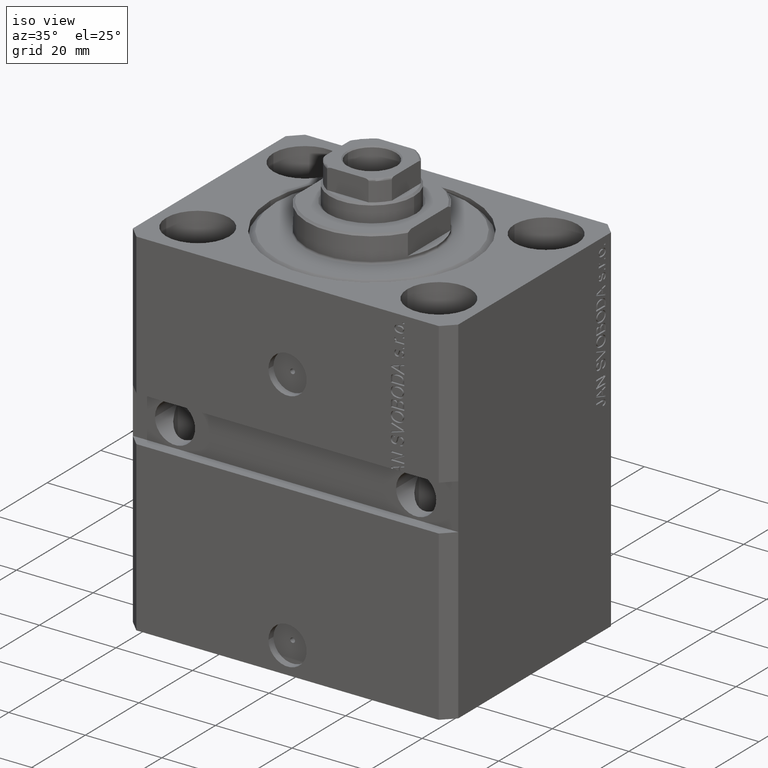
[diagram: clean part render]
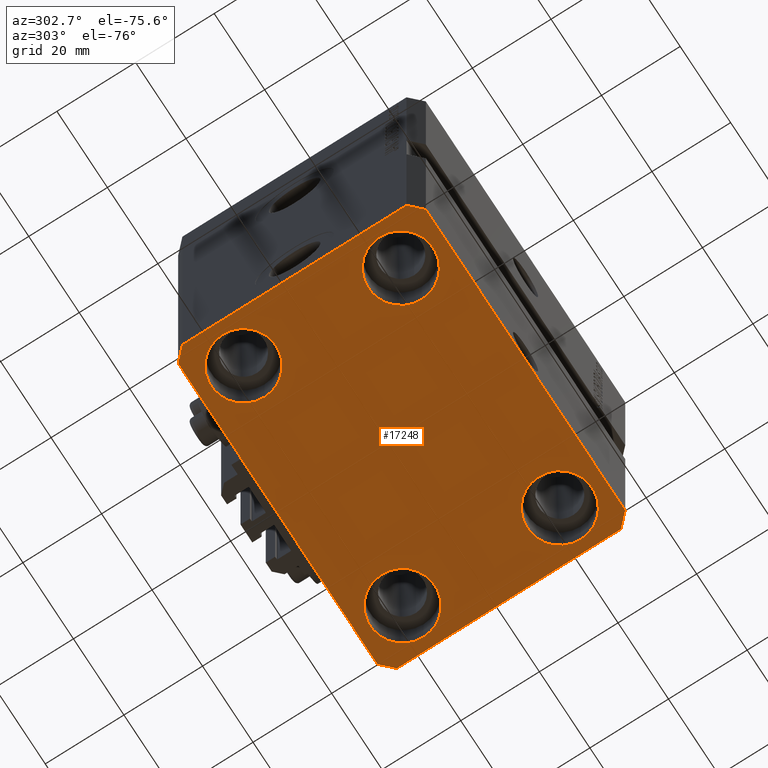
[diagram: tour spotlight — one face highlighted and labeled with its STEP entity id]
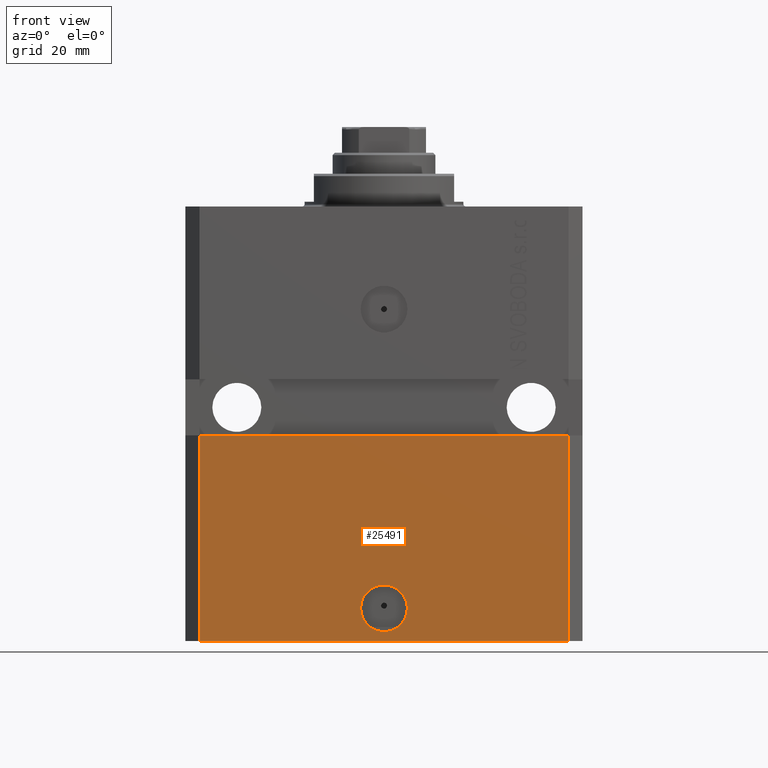
[diagram: tour spotlight — one face highlighted and labeled with its STEP entity id]
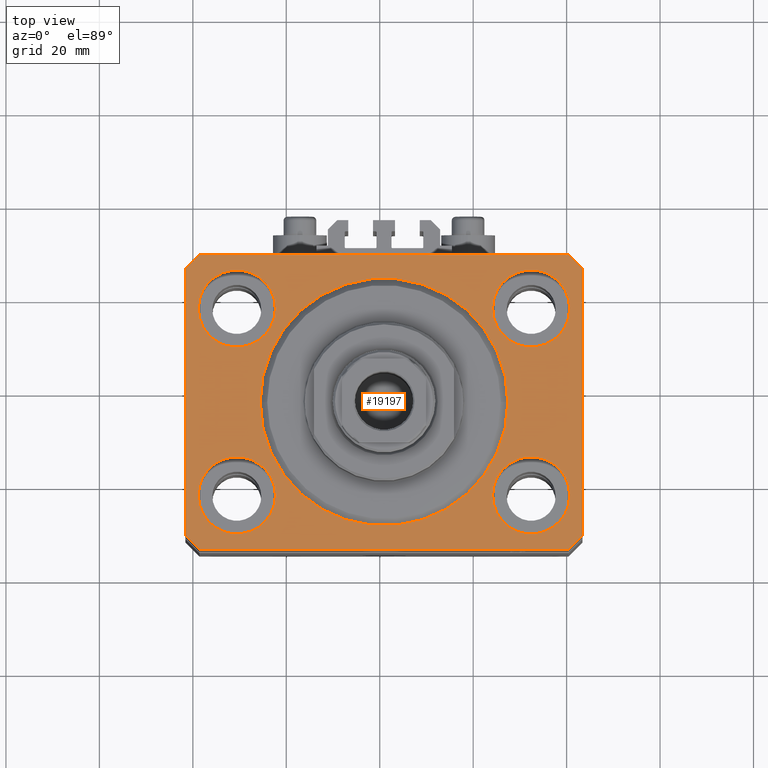
[diagram: tour spotlight — one face highlighted and labeled with its STEP entity id]
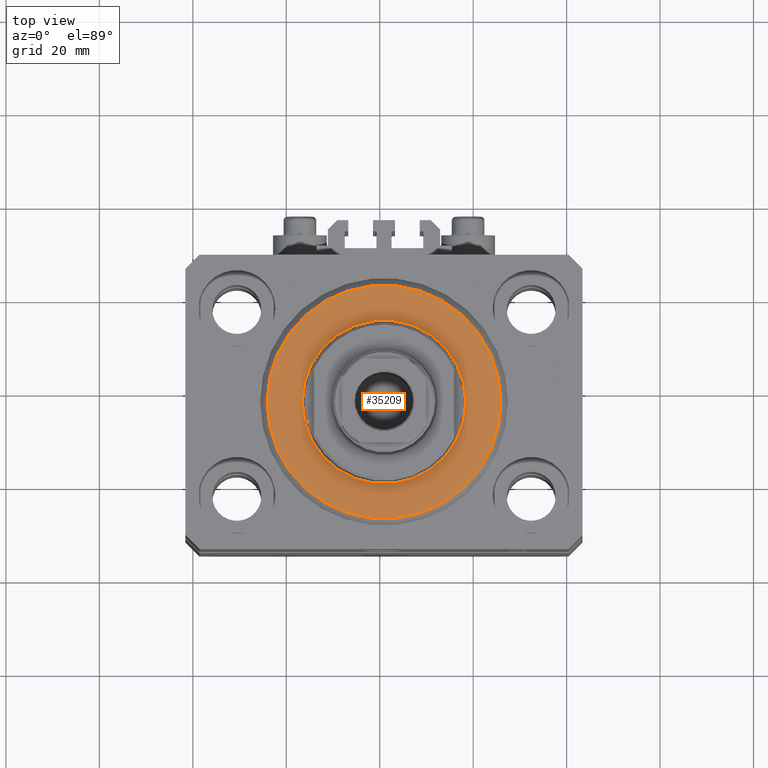
[diagram: tour spotlight — one face highlighted and labeled with its STEP entity id]
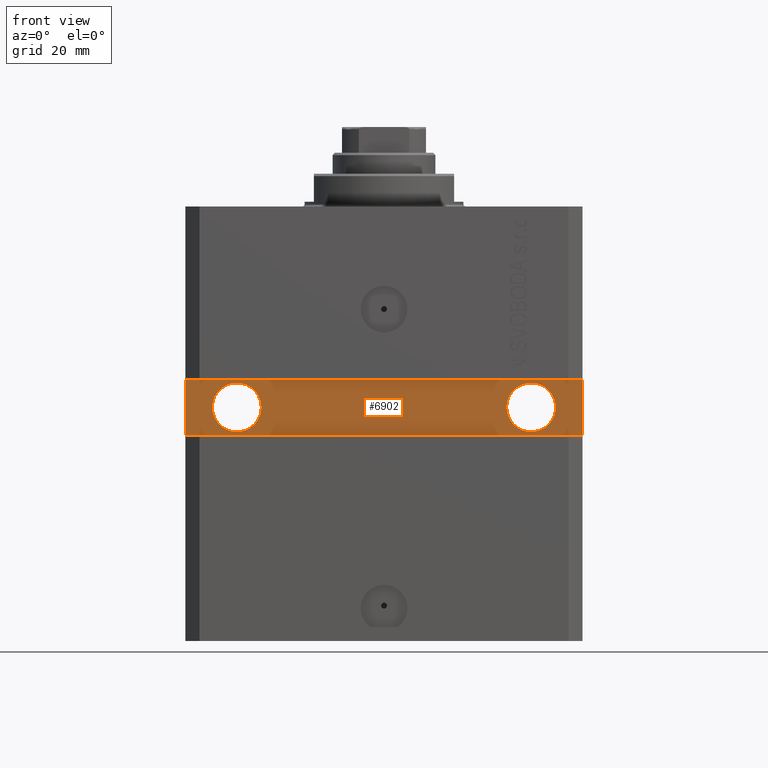
[diagram: tour spotlight — one face highlighted and labeled with its STEP entity id]
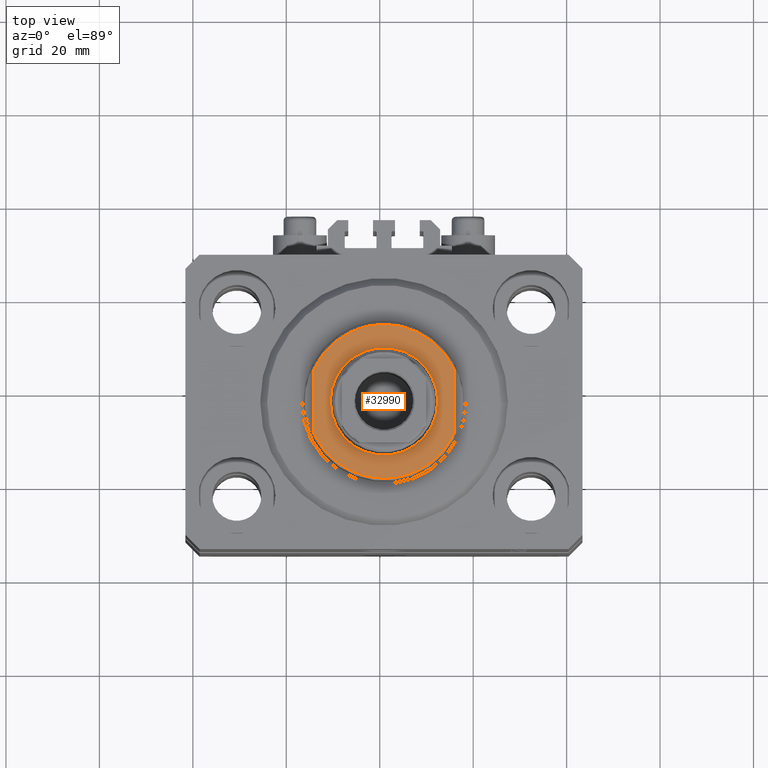
[diagram: tour spotlight — one face highlighted and labeled with its STEP entity id]
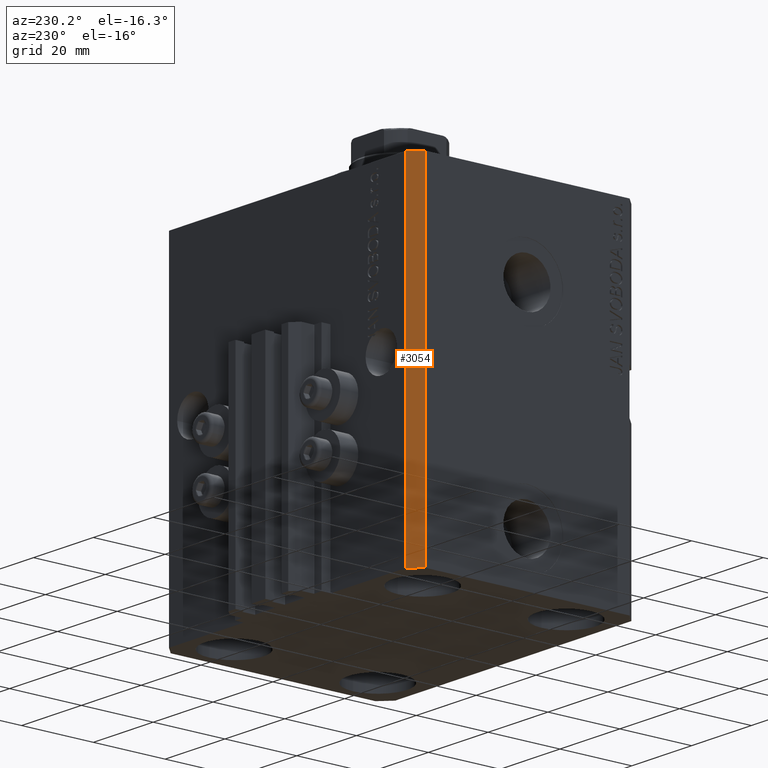
[diagram: tour spotlight — one face highlighted and labeled with its STEP entity id]
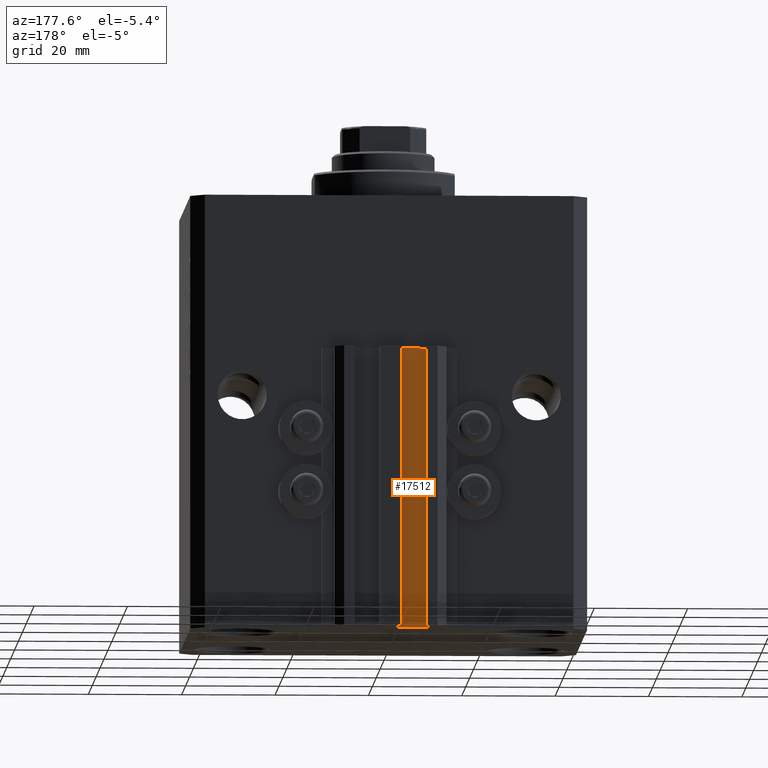
[diagram: tour spotlight — one face highlighted and labeled with its STEP entity id]
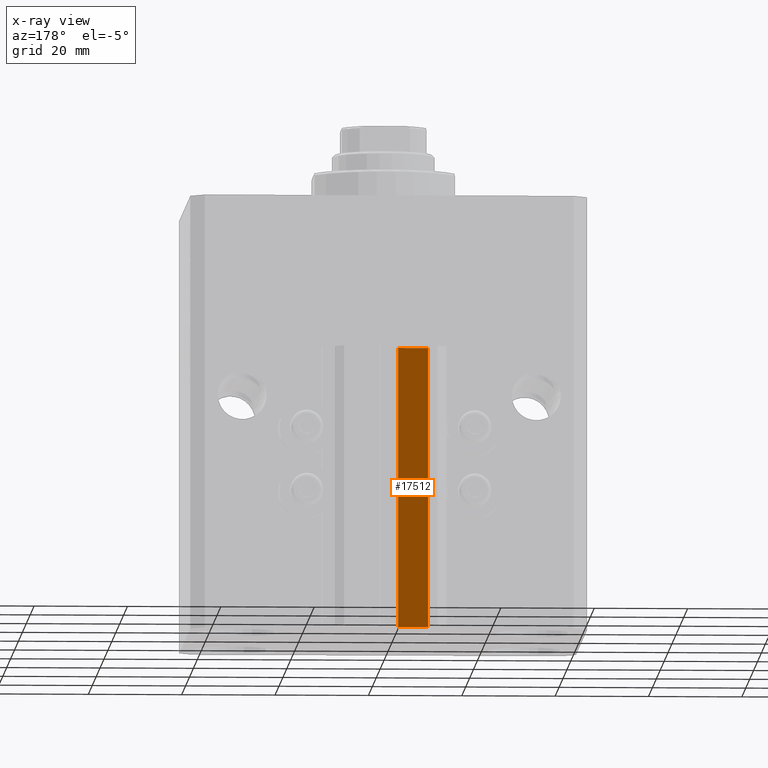
[diagram: x-ray of the same camera — body ghosted, this tour face saturated]
A machine part: a face-by-face anatomy tour. The part has 1087 B-rep faces; the first image is the clean iso view, then the 8 largest visible faces are spotlighted one at a time (largest first), each with its STEP entity span.

Face 1 — auxiliary view, entity #17248. In plain terms, the highlighted planar face has unit normal (0, 0, 1).
Definition (entity closure, byte-faithful):
#257 = ORIENTED_EDGE ( 'NONE', *, *, #44947, .T. ) ;
#808 = CARTESIAN_POINT ( 'NONE',  ( -39.50000000000000711, 31.50000000000000000, -93.00000000000000000 ) ) ;
#1301 = DIRECTION ( 'NONE',  ( 1.000000000000000000, 0.000000000000000000, 0.000000000000000000 ) ) ;
#1502 = ORIENTED_EDGE ( 'NONE', *, *, #9892, .F. ) ;
#1817 = FACE_BOUND ( 'NONE', #39264, .T. ) ;
#1870 = CARTESIAN_POINT ( 'NONE',  ( -31.50000000000000000, -20.00000000000000000, -93.00000000000000000 ) ) ;
#2752 = LINE ( 'NONE', #21498, #31916 ) ;
#2809 = DIRECTION ( 'NONE',  ( -0.000000000000000000, -0.000000000000000000, 1.000000000000000000 ) ) ;
#3139 = CARTESIAN_POINT ( 'NONE',  ( -42.50000000000000000, -28.50000000000000000, -93.00000000000000000 ) ) ;
#3313 = DIRECTION ( 'NONE',  ( -0.000000000000000000, -0.000000000000000000, 1.000000000000000000 ) ) ;
#3993 = VERTEX_POINT ( 'NONE', #21637 ) ;
#3997 = VERTEX_POINT ( 'NONE', #28850 ) ;
#4710 = DIRECTION ( 'NONE',  ( 0.000000000000000000, 0.000000000000000000, 1.000000000000000000 ) ) ;
#4993 = ORIENTED_EDGE ( 'NONE', *, *, #34763, .T. ) ;
#5135 = DIRECTION ( 'NONE',  ( 1.000000000000000000, 0.000000000000000000, 0.000000000000000000 ) ) ;
#5632 = EDGE_LOOP ( 'NONE', ( #257, #9177 ) ) ;
#5649 = CARTESIAN_POINT ( 'NONE',  ( -23.25000000000000000, -20.00000000000000000, -93.00000000000000000 ) ) ;
#5801 = CIRCLE ( 'NONE', #47185, 8.249999999999992895 ) ;
#5835 = CARTESIAN_POINT ( 'NONE',  ( -42.50000000000000000, 28.50000000000000000, -93.00000000000000000 ) ) ;
#6270 = DIRECTION ( 'NONE',  ( 0.7071067811865471286, -0.7071067811865479058, 0.000000000000000000 ) ) ;
#6524 = CIRCLE ( 'NONE', #33431, 8.250000000000000000 ) ;
#6539 = EDGE_CURVE ( 'NONE', #8537, #8378, #40714, .T. ) ;
#6971 = VERTEX_POINT ( 'NONE', #15530 ) ;
#7174 = DIRECTION ( 'NONE',  ( -0.000000000000000000, -0.000000000000000000, 1.000000000000000000 ) ) ;
#7175 = VECTOR ( 'NONE', #25753, 1000.000000000000114 ) ;
#7666 = AXIS2_PLACEMENT_3D ( 'NONE', #32213, #7174, #47600 ) ;
#8011 = CARTESIAN_POINT ( 'NONE',  ( 39.50000000000000711, -31.50000000000000000, -93.00000000000000000 ) ) ;
#8154 = CARTESIAN_POINT ( 'NONE',  ( 39.74999999999999289, 20.00000000000001066, -93.00000000000000000 ) ) ;
#8318 = FACE_BOUND ( 'NONE', #29417, .T. ) ;
#8378 = VERTEX_POINT ( 'NONE', #26670 ) ;
#8537 = VERTEX_POINT ( 'NONE', #39628 ) ;
#8755 = DIRECTION ( 'NONE',  ( -0.000000000000000000, -0.000000000000000000, 1.000000000000000000 ) ) ;
#8804 = FACE_BOUND ( 'NONE', #36847, .T. ) ;
#8947 = VERTEX_POINT ( 'NONE', #808 ) ;
#9177 = ORIENTED_EDGE ( 'NONE', *, *, #41628, .T. ) ;
#9220 = DIRECTION ( 'NONE',  ( -0.000000000000000000, -0.000000000000000000, 1.000000000000000000 ) ) ;
#9572 = LINE ( 'NONE', #38929, #20799 ) ;
#9892 = EDGE_CURVE ( 'NONE', #46229, #40620, #25318, .T. ) ;
#11028 = EDGE_CURVE ( 'NONE', #23531, #46229, #30414, .T. ) ;
#11601 = EDGE_LOOP ( 'NONE', ( #42933, #29257, #36636, #1502, #41055, #44761, #15043, #34645 ) ) ;
#12248 = AXIS2_PLACEMENT_3D ( 'NONE', #37677, #4710, #19873 ) ;
#12929 = DIRECTION ( 'NONE',  ( -0.000000000000000000, -0.000000000000000000, 1.000000000000000000 ) ) ;
#13157 = VERTEX_POINT ( 'NONE', #8154 ) ;
#13771 = DIRECTION ( 'NONE',  ( 0.000000000000000000, -1.000000000000000000, 0.000000000000000000 ) ) ;
#14191 = ORIENTED_EDGE ( 'NONE', *, *, #6539, .T. ) ;
#14563 = CARTESIAN_POINT ( 'NONE',  ( 31.50000000000000000, -20.00000000000000000, -93.00000000000000000 ) ) ;
#14881 = DIRECTION ( 'NONE',  ( -0.000000000000000000, -0.000000000000000000, 1.000000000000000000 ) ) ;
#14897 = EDGE_CURVE ( 'NONE', #13157, #3997, #16022, .T. ) ;
#15043 = ORIENTED_EDGE ( 'NONE', *, *, #17569, .F. ) ;
#15378 = CARTESIAN_POINT ( 'NONE',  ( 42.50000000000051870, 28.49999999999995381, -93.00000000000000000 ) ) ;
#15530 = CARTESIAN_POINT ( 'NONE',  ( 39.50000000000056843, 31.50000000000000000, -93.00000000000000000 ) ) ;
#15602 = VECTOR ( 'NONE', #6270, 1000.000000000000000 ) ;
#15945 = EDGE_CURVE ( 'NONE', #8378, #8537, #35244, .T. ) ;
#16022 = CIRCLE ( 'NONE', #27532, 8.249999999999992895 ) ;
#16047 = EDGE_CURVE ( 'NONE', #3993, #23485, #28359, .T. ) ;
#16554 = DIRECTION ( 'NONE',  ( 1.000000000000000000, 0.000000000000000000, 0.000000000000000000 ) ) ;
#16686 = CARTESIAN_POINT ( 'NONE',  ( 31.50000000000000000, -20.00000000000000000, -93.00000000000000000 ) ) ;
#17226 = AXIS2_PLACEMENT_3D ( 'NONE', #16686, #8755, #5135 ) ;
#17248 = ADVANCED_FACE ( 'NONE', ( #8318, #23017, #1817, #8804, #38158 ), #45141, .F. ) ;
#17569 = EDGE_CURVE ( 'NONE', #43761, #18917, #21001, .T. ) ;
#17662 = DIRECTION ( 'NONE',  ( -0.7071067811865471286, -0.7071067811865479058, 0.000000000000000000 ) ) ;
#18917 = VERTEX_POINT ( 'NONE', #32229 ) ;
#19310 = VERTEX_POINT ( 'NONE', #35479 ) ;
#19786 = VERTEX_POINT ( 'NONE', #15378 ) ;
#19873 = DIRECTION ( 'NONE',  ( 1.000000000000000000, 0.000000000000000000, -0.000000000000000000 ) ) ;
#19900 = EDGE_CURVE ( 'NONE', #40620, #19786, #9572, .T. ) ;
#20440 = EDGE_CURVE ( 'NONE', #3997, #13157, #35387, .T. ) ;
#20724 = CARTESIAN_POINT ( 'NONE',  ( 31.50000000000000000, 20.00000000000001066, -93.00000000000000000 ) ) ;
#20799 = VECTOR ( 'NONE', #22066, 1000.000000000000000 ) ;
#21001 = LINE ( 'NONE', #5835, #24588 ) ;
#21498 = CARTESIAN_POINT ( 'NONE',  ( -39.50000000000000711, 31.50000000000000000, -93.00000000000000000 ) ) ;
#21637 = CARTESIAN_POINT ( 'NONE',  ( -39.75000000000000000, -20.00000000000000000, -93.00000000000000000 ) ) ;
#21792 = ORIENTED_EDGE ( 'NONE', *, *, #15945, .T. ) ;
#21793 = DIRECTION ( 'NONE',  ( 1.000000000000000000, 0.000000000000000000, 0.000000000000000000 ) ) ;
#21919 = VECTOR ( 'NONE', #34170, 1000.000000000000000 ) ;
#22066 = DIRECTION ( 'NONE',  ( 8.886653596232072440E-15, 1.000000000000000000, 0.000000000000000000 ) ) ;
#22139 = LINE ( 'NONE', #43787, #7175 ) ;
#23017 = FACE_BOUND ( 'NONE', #5632, .T. ) ;
#23485 = VERTEX_POINT ( 'NONE', #5649 ) ;
#23531 = VERTEX_POINT ( 'NONE', #46562 ) ;
#24149 = CARTESIAN_POINT ( 'NONE',  ( 31.50000000000000000, 20.00000000000001066, -93.00000000000000000 ) ) ;
#24588 = VECTOR ( 'NONE', #13771, 1000.000000000000000 ) ;
#24654 = CARTESIAN_POINT ( 'NONE',  ( 39.74999999999999289, -20.00000000000000000, -93.00000000000000000 ) ) ;
#25318 = LINE ( 'NONE', #47205, #42493 ) ;
#25753 = DIRECTION ( 'NONE',  ( -0.7071067811865356934, 0.7071067811865594521, 0.000000000000000000 ) ) ;
#25772 = EDGE_CURVE ( 'NONE', #18917, #23531, #32730, .T. ) ;
#26670 = CARTESIAN_POINT ( 'NONE',  ( -39.75000000000000000, 20.00000000000000000, -93.00000000000000000 ) ) ;
#27532 = AXIS2_PLACEMENT_3D ( 'NONE', #20724, #3313, #28819 ) ;
#27554 = EDGE_CURVE ( 'NONE', #19786, #6971, #22139, .T. ) ;
#27666 = LINE ( 'NONE', #45479, #21919 ) ;
#28359 = CIRCLE ( 'NONE', #29864, 8.250000000000000000 ) ;
#28548 = DIRECTION ( 'NONE',  ( 1.000000000000000000, 0.000000000000000000, 0.000000000000000000 ) ) ;
#28819 = DIRECTION ( 'NONE',  ( 1.000000000000000000, 0.000000000000000000, 0.000000000000000000 ) ) ;
#28850 = CARTESIAN_POINT ( 'NONE',  ( 23.25000000000000355, 20.00000000000001066, -93.00000000000000000 ) ) ;
#29246 = DIRECTION ( 'NONE',  ( -0.000000000000000000, -0.000000000000000000, 1.000000000000000000 ) ) ;
#29257 = ORIENTED_EDGE ( 'NONE', *, *, #27554, .F. ) ;
#29417 = EDGE_LOOP ( 'NONE', ( #40737, #4993 ) ) ;
#29511 = CIRCLE ( 'NONE', #17226, 8.249999999999992895 ) ;
#29864 = AXIS2_PLACEMENT_3D ( 'NONE', #1870, #12929, #16554 ) ;
#30414 = LINE ( 'NONE', #30662, #30628 ) ;
#30628 = VECTOR ( 'NONE', #1301, 1000.000000000000000 ) ;
#30662 = CARTESIAN_POINT ( 'NONE',  ( -39.50000000000000711, -31.50000000000000000, -93.00000000000000000 ) ) ;
#31591 = DIRECTION ( 'NONE',  ( 1.000000000000000000, 0.000000000000000000, 0.000000000000000000 ) ) ;
#31916 = VECTOR ( 'NONE', #17662, 1000.000000000000000 ) ;
#32213 = CARTESIAN_POINT ( 'NONE',  ( -31.50000000000000000, 20.00000000000000000, -93.00000000000000000 ) ) ;
#32229 = CARTESIAN_POINT ( 'NONE',  ( -42.50000000000000000, -28.50000000000000000, -93.00000000000000000 ) ) ;
#32730 = LINE ( 'NONE', #3139, #15602 ) ;
#33431 = AXIS2_PLACEMENT_3D ( 'NONE', #47531, #2809, #28548 ) ;
#33880 = DIRECTION ( 'NONE',  ( 1.000000000000000000, 0.000000000000000000, 0.000000000000000000 ) ) ;
#34170 = DIRECTION ( 'NONE',  ( -1.000000000000000000, 0.000000000000000000, 0.000000000000000000 ) ) ;
#34227 = ORIENTED_EDGE ( 'NONE', *, *, #20440, .T. ) ;
#34331 = CARTESIAN_POINT ( 'NONE',  ( -42.50000000000000000, 28.50000000000000000, -93.00000000000000000 ) ) ;
#34645 = ORIENTED_EDGE ( 'NONE', *, *, #35035, .F. ) ;
#34763 = EDGE_CURVE ( 'NONE', #23485, #3993, #6524, .T. ) ;
#34946 = VERTEX_POINT ( 'NONE', #24654 ) ;
#35035 = EDGE_CURVE ( 'NONE', #8947, #43761, #2752, .T. ) ;
#35244 = CIRCLE ( 'NONE', #41403, 8.250000000000000000 ) ;
#35363 = EDGE_CURVE ( 'NONE', #6971, #8947, #27666, .T. ) ;
#35387 = CIRCLE ( 'NONE', #43825, 8.249999999999992895 ) ;
#35479 = CARTESIAN_POINT ( 'NONE',  ( 23.25000000000000355, -20.00000000000000000, -93.00000000000000000 ) ) ;
#36369 = DIRECTION ( 'NONE',  ( 0.7071067811865483499, 0.7071067811865466846, 0.000000000000000000 ) ) ;
#36636 = ORIENTED_EDGE ( 'NONE', *, *, #19900, .F. ) ;
#36847 = EDGE_LOOP ( 'NONE', ( #21792, #14191 ) ) ;
#37677 = CARTESIAN_POINT ( 'NONE',  ( 0.000000000000000000, 0.000000000000000000, -93.00000000000000000 ) ) ;
#38158 = FACE_OUTER_BOUND ( 'NONE', #11601, .T. ) ;
#38929 = CARTESIAN_POINT ( 'NONE',  ( 42.50000000000000711, -28.50000000000000355, -93.00000000000000000 ) ) ;
#39264 = EDGE_LOOP ( 'NONE', ( #34227, #42403 ) ) ;
#39628 = CARTESIAN_POINT ( 'NONE',  ( -23.25000000000000000, 20.00000000000000000, -93.00000000000000000 ) ) ;
#39816 = CARTESIAN_POINT ( 'NONE',  ( 42.50000000000000711, -28.50000000000000355, -93.00000000000000000 ) ) ;
#40620 = VERTEX_POINT ( 'NONE', #39816 ) ;
#40630 = CARTESIAN_POINT ( 'NONE',  ( -31.50000000000000000, 20.00000000000000000, -93.00000000000000000 ) ) ;
#40714 = CIRCLE ( 'NONE', #7666, 8.250000000000000000 ) ;
#40737 = ORIENTED_EDGE ( 'NONE', *, *, #16047, .T. ) ;
#41055 = ORIENTED_EDGE ( 'NONE', *, *, #11028, .F. ) ;
#41403 = AXIS2_PLACEMENT_3D ( 'NONE', #40630, #14881, #33880 ) ;
#41628 = EDGE_CURVE ( 'NONE', #34946, #19310, #29511, .T. ) ;
#42403 = ORIENTED_EDGE ( 'NONE', *, *, #14897, .T. ) ;
#42493 = VECTOR ( 'NONE', #36369, 1000.000000000000000 ) ;
#42933 = ORIENTED_EDGE ( 'NONE', *, *, #35363, .F. ) ;
#43761 = VERTEX_POINT ( 'NONE', #34331 ) ;
#43787 = CARTESIAN_POINT ( 'NONE',  ( 42.50000000000051870, 28.49999999999995381, -93.00000000000000000 ) ) ;
#43825 = AXIS2_PLACEMENT_3D ( 'NONE', #24149, #9220, #31591 ) ;
#44761 = ORIENTED_EDGE ( 'NONE', *, *, #25772, .F. ) ;
#44947 = EDGE_CURVE ( 'NONE', #19310, #34946, #5801, .T. ) ;
#45141 = PLANE ( 'NONE',  #12248 ) ;
#45479 = CARTESIAN_POINT ( 'NONE',  ( 39.50000000000056843, 31.50000000000000000, -93.00000000000000000 ) ) ;
#46229 = VERTEX_POINT ( 'NONE', #8011 ) ;
#46562 = CARTESIAN_POINT ( 'NONE',  ( -39.50000000000000711, -31.50000000000000000, -93.00000000000000000 ) ) ;
#47185 = AXIS2_PLACEMENT_3D ( 'NONE', #14563, #29246, #21793 ) ;
#47205 = CARTESIAN_POINT ( 'NONE',  ( 39.50000000000000711, -31.50000000000000000, -93.00000000000000000 ) ) ;
#47531 = CARTESIAN_POINT ( 'NONE',  ( -31.50000000000000000, -20.00000000000000000, -93.00000000000000000 ) ) ;
#47600 = DIRECTION ( 'NONE',  ( 1.000000000000000000, 0.000000000000000000, 0.000000000000000000 ) ) ;

Face 2 — front view, entity #25491. In plain terms, the highlighted planar face has unit normal (0, -1, 0).
Definition (entity closure, byte-faithful):
#192 = DIRECTION ( 'NONE',  ( 1.176083712526788232E-16, -1.000000000000000000, 0.000000000000000000 ) ) ;
#1180 = CIRCLE ( 'NONE', #2697, 5.000000000000006217 ) ;
#1301 = DIRECTION ( 'NONE',  ( 1.000000000000000000, 0.000000000000000000, 0.000000000000000000 ) ) ;
#2418 = DIRECTION ( 'NONE',  ( 1.000000000000000000, 1.632680918566406300E-16, 0.000000000000000000 ) ) ;
#2697 = AXIS2_PLACEMENT_3D ( 'NONE', #14855, #192, #41077 ) ;
#3334 = AXIS2_PLACEMENT_3D ( 'NONE', #16091, #5483, #20173 ) ;
#4184 = CARTESIAN_POINT ( 'NONE',  ( 39.50000000000001421, -31.49999999999999289, -48.99999999999999289 ) ) ;
#5247 = DIRECTION ( 'NONE',  ( 0.000000000000000000, 0.000000000000000000, 1.000000000000000000 ) ) ;
#5483 = DIRECTION ( 'NONE',  ( 1.176083712526788232E-16, -1.000000000000000000, 0.000000000000000000 ) ) ;
#6253 = LINE ( 'NONE', #27925, #16130 ) ;
#6276 = ORIENTED_EDGE ( 'NONE', *, *, #11028, .T. ) ;
#6322 = AXIS2_PLACEMENT_3D ( 'NONE', #36378, #39298, #28929 ) ;
#7263 = ORIENTED_EDGE ( 'NONE', *, *, #24035, .T. ) ;
#8011 = CARTESIAN_POINT ( 'NONE',  ( 39.50000000000000711, -31.50000000000000000, -93.00000000000000000 ) ) ;
#8321 = VECTOR ( 'NONE', #10866, 1000.000000000000000 ) ;
#8400 = VERTEX_POINT ( 'NONE', #14643 ) ;
#10174 = PLANE ( 'NONE',  #6322 ) ;
#10402 = LINE ( 'NONE', #36863, #8321 ) ;
#10866 = DIRECTION ( 'NONE',  ( 0.000000000000000000, 0.000000000000000000, 1.000000000000000000 ) ) ;
#11028 = EDGE_CURVE ( 'NONE', #23531, #46229, #30414, .T. ) ;
#11354 = EDGE_CURVE ( 'NONE', #23531, #8400, #10402, .T. ) ;
#13662 = CARTESIAN_POINT ( 'NONE',  ( 39.50000000000000711, -31.50000000000000000, -93.00000000000000000 ) ) ;
#14643 = CARTESIAN_POINT ( 'NONE',  ( -39.50000000000000000, -31.50000000000000711, -48.99999999999999289 ) ) ;
#14855 = CARTESIAN_POINT ( 'NONE',  ( 0.000000000000000000, -31.50000000000000000, -86.00000000000000000 ) ) ;
#15009 = EDGE_LOOP ( 'NONE', ( #25643, #15445, #6276, #7263 ) ) ;
#15356 = EDGE_LOOP ( 'NONE', ( #42434, #23155 ) ) ;
#15445 = ORIENTED_EDGE ( 'NONE', *, *, #11354, .F. ) ;
#16091 = CARTESIAN_POINT ( 'NONE',  ( 0.000000000000000000, -31.50000000000000000, -86.00000000000000000 ) ) ;
#16130 = VECTOR ( 'NONE', #2418, 1000.000000000000000 ) ;
#17831 = EDGE_CURVE ( 'NONE', #8400, #33810, #6253, .T. ) ;
#20173 = DIRECTION ( 'NONE',  ( 1.000000000000000000, 0.000000000000000000, 0.000000000000000000 ) ) ;
#20358 = CARTESIAN_POINT ( 'NONE',  ( -5.000000000000006217, -31.50000000000000000, -86.00000000000000000 ) ) ;
#23155 = ORIENTED_EDGE ( 'NONE', *, *, #43614, .F. ) ;
#23531 = VERTEX_POINT ( 'NONE', #46562 ) ;
#24035 = EDGE_CURVE ( 'NONE', #46229, #33810, #38463, .T. ) ;
#24864 = FACE_BOUND ( 'NONE', #15356, .T. ) ;
#25491 = ADVANCED_FACE ( 'NONE', ( #24864, #35679 ), #10174, .T. ) ;
#25643 = ORIENTED_EDGE ( 'NONE', *, *, #17831, .F. ) ;
#27925 = CARTESIAN_POINT ( 'NONE',  ( -42.50000000000000000, -31.50000000000000711, -48.99999999999999289 ) ) ;
#28929 = DIRECTION ( 'NONE',  ( 0.000000000000000000, -0.000000000000000000, -1.000000000000000000 ) ) ;
#29335 = VECTOR ( 'NONE', #5247, 1000.000000000000000 ) ;
#30414 = LINE ( 'NONE', #30662, #30628 ) ;
#30628 = VECTOR ( 'NONE', #1301, 1000.000000000000000 ) ;
#30662 = CARTESIAN_POINT ( 'NONE',  ( -39.50000000000000711, -31.50000000000000000, -93.00000000000000000 ) ) ;
#33810 = VERTEX_POINT ( 'NONE', #4184 ) ;
#35679 = FACE_OUTER_BOUND ( 'NONE', #15009, .T. ) ;
#36378 = CARTESIAN_POINT ( 'NONE',  ( -39.50000000000000711, -31.50000000000000000, -93.00000000000000000 ) ) ;
#36863 = CARTESIAN_POINT ( 'NONE',  ( -39.50000000000000711, -31.50000000000000000, -93.00000000000000000 ) ) ;
#37132 = CIRCLE ( 'NONE', #3334, 5.000000000000006217 ) ;
#38463 = LINE ( 'NONE', #13662, #29335 ) ;
#39076 = EDGE_CURVE ( 'NONE', #46793, #40458, #37132, .T. ) ;
#39298 = DIRECTION ( 'NONE',  ( 0.000000000000000000, -1.000000000000000000, 0.000000000000000000 ) ) ;
#40458 = VERTEX_POINT ( 'NONE', #20358 ) ;
#41077 = DIRECTION ( 'NONE',  ( 1.000000000000000000, 0.000000000000000000, 0.000000000000000000 ) ) ;
#42077 = CARTESIAN_POINT ( 'NONE',  ( 5.000000000000006217, -31.50000000000000000, -86.00000000000000000 ) ) ;
#42434 = ORIENTED_EDGE ( 'NONE', *, *, #39076, .F. ) ;
#43614 = EDGE_CURVE ( 'NONE', #40458, #46793, #1180, .T. ) ;
#46229 = VERTEX_POINT ( 'NONE', #8011 ) ;
#46562 = CARTESIAN_POINT ( 'NONE',  ( -39.50000000000000711, -31.50000000000000000, -93.00000000000000000 ) ) ;
#46793 = VERTEX_POINT ( 'NONE', #42077 ) ;

Face 3 — top view, entity #19197. In plain terms, the highlighted planar face has unit normal (0, 0, 1).
Definition (entity closure, byte-faithful):
#93 = CARTESIAN_POINT ( 'NONE',  ( -42.50000000000000000, 28.50000000000000000, 0.000000000000000000 ) ) ;
#283 = VECTOR ( 'NONE', #37915, 1000.000000000000000 ) ;
#894 = LINE ( 'NONE', #44456, #7310 ) ;
#1006 = ORIENTED_EDGE ( 'NONE', *, *, #24782, .T. ) ;
#1185 = CARTESIAN_POINT ( 'NONE',  ( 23.25000000000000355, -20.00000000000000000, 0.000000000000000000 ) ) ;
#1490 = EDGE_CURVE ( 'NONE', #29046, #25281, #31044, .T. ) ;
#1566 = AXIS2_PLACEMENT_3D ( 'NONE', #6427, #6893, #21118 ) ;
#1798 = CARTESIAN_POINT ( 'NONE',  ( 39.50000000000000711, -31.50000000000000000, 0.000000000000000000 ) ) ;
#1818 = LINE ( 'NONE', #27335, #283 ) ;
#1851 = EDGE_CURVE ( 'NONE', #46170, #30488, #41299, .T. ) ;
#1903 = DIRECTION ( 'NONE',  ( 1.000000000000000000, 0.000000000000000000, 0.000000000000000000 ) ) ;
#1928 = VERTEX_POINT ( 'NONE', #41924 ) ;
#2437 = VERTEX_POINT ( 'NONE', #3041 ) ;
#2920 = DIRECTION ( 'NONE',  ( 0.000000000000000000, 0.000000000000000000, 1.000000000000000000 ) ) ;
#3041 = CARTESIAN_POINT ( 'NONE',  ( -23.25000000000000000, -20.00000000000000000, 0.000000000000000000 ) ) ;
#3289 = FACE_BOUND ( 'NONE', #27363, .T. ) ;
#3767 = EDGE_CURVE ( 'NONE', #22432, #36412, #43579, .T. ) ;
#3842 = DIRECTION ( 'NONE',  ( -0.7071067811865356934, 0.7071067811865594521, 0.000000000000000000 ) ) ;
#4235 = CIRCLE ( 'NONE', #44979, 26.50000000000000355 ) ;
#4722 = DIRECTION ( 'NONE',  ( 1.000000000000000000, 0.000000000000000000, 0.000000000000000000 ) ) ;
#4844 = AXIS2_PLACEMENT_3D ( 'NONE', #11467, #18708, #41067 ) ;
#5622 = AXIS2_PLACEMENT_3D ( 'NONE', #33607, #22792, #37450 ) ;
#5735 = DIRECTION ( 'NONE',  ( 1.000000000000000000, 0.000000000000000000, 0.000000000000000000 ) ) ;
#6033 = EDGE_CURVE ( 'NONE', #2437, #1928, #24547, .T. ) ;
#6427 = CARTESIAN_POINT ( 'NONE',  ( 0.000000000000000000, 0.000000000000000000, 0.000000000000000000 ) ) ;
#6525 = DIRECTION ( 'NONE',  ( 0.000000000000000000, 0.000000000000000000, 1.000000000000000000 ) ) ;
#6893 = DIRECTION ( 'NONE',  ( 0.000000000000000000, 0.000000000000000000, 1.000000000000000000 ) ) ;
#7310 = VECTOR ( 'NONE', #22330, 1000.000000000000000 ) ;
#8666 = CARTESIAN_POINT ( 'NONE',  ( -42.50000000000000000, -28.50000000000000000, 0.000000000000000000 ) ) ;
#8805 = CARTESIAN_POINT ( 'NONE',  ( -23.25000000000000000, 20.00000000000000000, 0.000000000000000000 ) ) ;
#8887 = DIRECTION ( 'NONE',  ( 0.000000000000000000, 0.000000000000000000, 1.000000000000000000 ) ) ;
#8920 = EDGE_CURVE ( 'NONE', #25281, #46058, #23434, .T. ) ;
#9171 = DIRECTION ( 'NONE',  ( 0.000000000000000000, 0.000000000000000000, 1.000000000000000000 ) ) ;
#9418 = DIRECTION ( 'NONE',  ( 1.000000000000000000, 0.000000000000000000, 0.000000000000000000 ) ) ;
#9528 = CARTESIAN_POINT ( 'NONE',  ( 0.000000000000000000, 0.000000000000000000, 0.000000000000000000 ) ) ;
#9659 = CARTESIAN_POINT ( 'NONE',  ( -31.50000000000000000, 20.00000000000000000, 0.000000000000000000 ) ) ;
#9946 = DIRECTION ( 'NONE',  ( 8.886653596232072440E-15, 1.000000000000000000, 0.000000000000000000 ) ) ;
#10722 = VERTEX_POINT ( 'NONE', #1185 ) ;
#10844 = EDGE_LOOP ( 'NONE', ( #45125, #24330 ) ) ;
#11467 = CARTESIAN_POINT ( 'NONE',  ( 31.50000000000000000, 20.00000000000001066, 0.000000000000000000 ) ) ;
#11564 = ORIENTED_EDGE ( 'NONE', *, *, #1490, .T. ) ;
#12839 = LINE ( 'NONE', #32072, #27736 ) ;
#13000 = ORIENTED_EDGE ( 'NONE', *, *, #45432, .F. ) ;
#13384 = DIRECTION ( 'NONE',  ( 0.000000000000000000, 0.000000000000000000, 1.000000000000000000 ) ) ;
#13572 = VERTEX_POINT ( 'NONE', #16983 ) ;
#13882 = FACE_BOUND ( 'NONE', #14990, .T. ) ;
#14587 = FACE_BOUND ( 'NONE', #35446, .T. ) ;
#14859 = CARTESIAN_POINT ( 'NONE',  ( 26.50000000000000355, 0.000000000000000000, 0.000000000000000000 ) ) ;
#14873 = AXIS2_PLACEMENT_3D ( 'NONE', #31187, #34086, #4722 ) ;
#14990 = EDGE_LOOP ( 'NONE', ( #32003, #24857 ) ) ;
#16653 = CARTESIAN_POINT ( 'NONE',  ( -31.50000000000000000, -20.00000000000000000, 0.000000000000000000 ) ) ;
#16983 = CARTESIAN_POINT ( 'NONE',  ( 39.74999999999999289, 20.00000000000001066, 0.000000000000000000 ) ) ;
#17473 = DIRECTION ( 'NONE',  ( 1.000000000000000000, 0.000000000000000000, 0.000000000000000000 ) ) ;
#17742 = AXIS2_PLACEMENT_3D ( 'NONE', #41853, #8887, #5735 ) ;
#17764 = VERTEX_POINT ( 'NONE', #34660 ) ;
#17970 = FACE_BOUND ( 'NONE', #31082, .T. ) ;
#18016 = VERTEX_POINT ( 'NONE', #39694 ) ;
#18249 = AXIS2_PLACEMENT_3D ( 'NONE', #20499, #35163, #34690 ) ;
#18577 = ORIENTED_EDGE ( 'NONE', *, *, #26575, .F. ) ;
#18584 = DIRECTION ( 'NONE',  ( 0.7071067811865483499, 0.7071067811865466846, 0.000000000000000000 ) ) ;
#18708 = DIRECTION ( 'NONE',  ( 0.000000000000000000, 0.000000000000000000, 1.000000000000000000 ) ) ;
#19197 = ADVANCED_FACE ( 'NONE', ( #13882, #28797, #3289, #14587, #17970, #24727 ), #39390, .T. ) ;
#19677 = ORIENTED_EDGE ( 'NONE', *, *, #23918, .T. ) ;
#19812 = DIRECTION ( 'NONE',  ( 1.000000000000000000, 0.000000000000000000, 0.000000000000000000 ) ) ;
#20499 = CARTESIAN_POINT ( 'NONE',  ( -31.50000000000000000, 20.00000000000000000, 0.000000000000000000 ) ) ;
#21118 = DIRECTION ( 'NONE',  ( 1.000000000000000000, 0.000000000000000000, -0.000000000000000000 ) ) ;
#21265 = EDGE_CURVE ( 'NONE', #18016, #44693, #12839, .T. ) ;
#21419 = EDGE_CURVE ( 'NONE', #1928, #2437, #21579, .T. ) ;
#21579 = CIRCLE ( 'NONE', #17742, 8.250000000000000000 ) ;
#21643 = LINE ( 'NONE', #36789, #41644 ) ;
#21693 = CARTESIAN_POINT ( 'NONE',  ( 39.50000000000056843, 31.50000000000000000, 0.000000000000000000 ) ) ;
#22330 = DIRECTION ( 'NONE',  ( 0.000000000000000000, -1.000000000000000000, 0.000000000000000000 ) ) ;
#22432 = VERTEX_POINT ( 'NONE', #33459 ) ;
#22619 = CIRCLE ( 'NONE', #28747, 8.250000000000000000 ) ;
#22792 = DIRECTION ( 'NONE',  ( 0.000000000000000000, 0.000000000000000000, 1.000000000000000000 ) ) ;
#23214 = CARTESIAN_POINT ( 'NONE',  ( -39.50000000000000711, -31.50000000000000000, 0.000000000000000000 ) ) ;
#23434 = LINE ( 'NONE', #38099, #34629 ) ;
#23705 = EDGE_LOOP ( 'NONE', ( #31782, #24391, #33209, #11564, #33223, #1006, #42924, #19677 ) ) ;
#23802 = VERTEX_POINT ( 'NONE', #46680 ) ;
#23840 = CARTESIAN_POINT ( 'NONE',  ( -39.50000000000000711, 31.50000000000000000, 0.000000000000000000 ) ) ;
#23865 = DIRECTION ( 'NONE',  ( 1.000000000000000000, 0.000000000000000000, 0.000000000000000000 ) ) ;
#23918 = EDGE_CURVE ( 'NONE', #44693, #22432, #21643, .T. ) ;
#23948 = CARTESIAN_POINT ( 'NONE',  ( -26.50000000000000355, 3.245314017740486554E-15, 0.000000000000000000 ) ) ;
#24026 = VECTOR ( 'NONE', #18584, 1000.000000000000000 ) ;
#24330 = ORIENTED_EDGE ( 'NONE', *, *, #25769, .F. ) ;
#24391 = ORIENTED_EDGE ( 'NONE', *, *, #30435, .T. ) ;
#24547 = CIRCLE ( 'NONE', #34527, 8.250000000000000000 ) ;
#24727 = FACE_OUTER_BOUND ( 'NONE', #23705, .T. ) ;
#24782 = EDGE_CURVE ( 'NONE', #46058, #18016, #25559, .T. ) ;
#24857 = ORIENTED_EDGE ( 'NONE', *, *, #21419, .F. ) ;
#24879 = CIRCLE ( 'NONE', #14873, 26.50000000000000355 ) ;
#25281 = VERTEX_POINT ( 'NONE', #23214 ) ;
#25559 = LINE ( 'NONE', #33494, #24026 ) ;
#25769 = EDGE_CURVE ( 'NONE', #10722, #17764, #35556, .T. ) ;
#26575 = EDGE_CURVE ( 'NONE', #23802, #13572, #28679, .T. ) ;
#27335 = CARTESIAN_POINT ( 'NONE',  ( -39.50000000000000711, 31.50000000000000000, 0.000000000000000000 ) ) ;
#27363 = EDGE_LOOP ( 'NONE', ( #29956, #18577 ) ) ;
#27736 = VECTOR ( 'NONE', #9946, 1000.000000000000000 ) ;
#28071 = CARTESIAN_POINT ( 'NONE',  ( -42.50000000000000000, -28.50000000000000000, 0.000000000000000000 ) ) ;
#28679 = CIRCLE ( 'NONE', #4844, 8.249999999999992895 ) ;
#28683 = EDGE_CURVE ( 'NONE', #13572, #23802, #41706, .T. ) ;
#28747 = AXIS2_PLACEMENT_3D ( 'NONE', #9659, #2920, #9418 ) ;
#28784 = VERTEX_POINT ( 'NONE', #14859 ) ;
#28797 = FACE_BOUND ( 'NONE', #10844, .T. ) ;
#29046 = VERTEX_POINT ( 'NONE', #28071 ) ;
#29781 = CARTESIAN_POINT ( 'NONE',  ( 42.50000000000051870, 28.49999999999995381, 0.000000000000000000 ) ) ;
#29956 = ORIENTED_EDGE ( 'NONE', *, *, #28683, .F. ) ;
#30435 = EDGE_CURVE ( 'NONE', #36412, #32738, #1818, .T. ) ;
#30488 = VERTEX_POINT ( 'NONE', #8805 ) ;
#31044 = LINE ( 'NONE', #8666, #32954 ) ;
#31082 = EDGE_LOOP ( 'NONE', ( #44660, #32210 ) ) ;
#31187 = CARTESIAN_POINT ( 'NONE',  ( 0.000000000000000000, 0.000000000000000000, 0.000000000000000000 ) ) ;
#31204 = EDGE_CURVE ( 'NONE', #17764, #10722, #36358, .T. ) ;
#31782 = ORIENTED_EDGE ( 'NONE', *, *, #3767, .T. ) ;
#32003 = ORIENTED_EDGE ( 'NONE', *, *, #6033, .F. ) ;
#32072 = CARTESIAN_POINT ( 'NONE',  ( 42.50000000000000711, -28.50000000000000355, 0.000000000000000000 ) ) ;
#32210 = ORIENTED_EDGE ( 'NONE', *, *, #43847, .F. ) ;
#32619 = VERTEX_POINT ( 'NONE', #23948 ) ;
#32738 = VERTEX_POINT ( 'NONE', #93 ) ;
#32954 = VECTOR ( 'NONE', #45244, 1000.000000000000000 ) ;
#33209 = ORIENTED_EDGE ( 'NONE', *, *, #43672, .T. ) ;
#33223 = ORIENTED_EDGE ( 'NONE', *, *, #8920, .T. ) ;
#33459 = CARTESIAN_POINT ( 'NONE',  ( 39.50000000000056843, 31.50000000000000000, 0.000000000000000000 ) ) ;
#33494 = CARTESIAN_POINT ( 'NONE',  ( 39.50000000000000711, -31.50000000000000000, 0.000000000000000000 ) ) ;
#33607 = CARTESIAN_POINT ( 'NONE',  ( 31.50000000000000000, -20.00000000000000000, 0.000000000000000000 ) ) ;
#33671 = VECTOR ( 'NONE', #36356, 1000.000000000000000 ) ;
#34086 = DIRECTION ( 'NONE',  ( 0.000000000000000000, 0.000000000000000000, 1.000000000000000000 ) ) ;
#34527 = AXIS2_PLACEMENT_3D ( 'NONE', #16653, #6525, #42627 ) ;
#34629 = VECTOR ( 'NONE', #19812, 1000.000000000000000 ) ;
#34660 = CARTESIAN_POINT ( 'NONE',  ( 39.74999999999999289, -20.00000000000000000, 0.000000000000000000 ) ) ;
#34690 = DIRECTION ( 'NONE',  ( 1.000000000000000000, 0.000000000000000000, 0.000000000000000000 ) ) ;
#35163 = DIRECTION ( 'NONE',  ( 0.000000000000000000, 0.000000000000000000, 1.000000000000000000 ) ) ;
#35446 = EDGE_LOOP ( 'NONE', ( #13000, #38598 ) ) ;
#35556 = CIRCLE ( 'NONE', #37098, 8.249999999999992895 ) ;
#35813 = CARTESIAN_POINT ( 'NONE',  ( 31.50000000000000000, 20.00000000000001066, 0.000000000000000000 ) ) ;
#36356 = DIRECTION ( 'NONE',  ( -1.000000000000000000, 0.000000000000000000, 0.000000000000000000 ) ) ;
#36358 = CIRCLE ( 'NONE', #5622, 8.249999999999992895 ) ;
#36412 = VERTEX_POINT ( 'NONE', #23840 ) ;
#36789 = CARTESIAN_POINT ( 'NONE',  ( 42.50000000000051870, 28.49999999999995381, 0.000000000000000000 ) ) ;
#37098 = AXIS2_PLACEMENT_3D ( 'NONE', #42140, #9171, #23865 ) ;
#37450 = DIRECTION ( 'NONE',  ( 1.000000000000000000, 0.000000000000000000, 0.000000000000000000 ) ) ;
#37915 = DIRECTION ( 'NONE',  ( -0.7071067811865471286, -0.7071067811865479058, 0.000000000000000000 ) ) ;
#38099 = CARTESIAN_POINT ( 'NONE',  ( -39.50000000000000711, -31.50000000000000000, 0.000000000000000000 ) ) ;
#38598 = ORIENTED_EDGE ( 'NONE', *, *, #1851, .F. ) ;
#39390 = PLANE ( 'NONE',  #1566 ) ;
#39694 = CARTESIAN_POINT ( 'NONE',  ( 42.50000000000000711, -28.50000000000000355, 0.000000000000000000 ) ) ;
#40425 = EDGE_CURVE ( 'NONE', #28784, #32619, #24879, .T. ) ;
#41067 = DIRECTION ( 'NONE',  ( 1.000000000000000000, 0.000000000000000000, 0.000000000000000000 ) ) ;
#41299 = CIRCLE ( 'NONE', #18249, 8.250000000000000000 ) ;
#41644 = VECTOR ( 'NONE', #3842, 1000.000000000000114 ) ;
#41706 = CIRCLE ( 'NONE', #43245, 8.249999999999992895 ) ;
#41853 = CARTESIAN_POINT ( 'NONE',  ( -31.50000000000000000, -20.00000000000000000, 0.000000000000000000 ) ) ;
#41924 = CARTESIAN_POINT ( 'NONE',  ( -39.75000000000000000, -20.00000000000000000, 0.000000000000000000 ) ) ;
#42140 = CARTESIAN_POINT ( 'NONE',  ( 31.50000000000000000, -20.00000000000000000, 0.000000000000000000 ) ) ;
#42627 = DIRECTION ( 'NONE',  ( 1.000000000000000000, 0.000000000000000000, 0.000000000000000000 ) ) ;
#42924 = ORIENTED_EDGE ( 'NONE', *, *, #21265, .T. ) ;
#43245 = AXIS2_PLACEMENT_3D ( 'NONE', #35813, #46650, #1903 ) ;
#43579 = LINE ( 'NONE', #21693, #33671 ) ;
#43672 = EDGE_CURVE ( 'NONE', #32738, #29046, #894, .T. ) ;
#43847 = EDGE_CURVE ( 'NONE', #32619, #28784, #4235, .T. ) ;
#44356 = CARTESIAN_POINT ( 'NONE',  ( -39.75000000000000000, 20.00000000000000000, 0.000000000000000000 ) ) ;
#44456 = CARTESIAN_POINT ( 'NONE',  ( -42.50000000000000000, 28.50000000000000000, 0.000000000000000000 ) ) ;
#44660 = ORIENTED_EDGE ( 'NONE', *, *, #40425, .F. ) ;
#44693 = VERTEX_POINT ( 'NONE', #29781 ) ;
#44979 = AXIS2_PLACEMENT_3D ( 'NONE', #9528, #13384, #17473 ) ;
#45125 = ORIENTED_EDGE ( 'NONE', *, *, #31204, .F. ) ;
#45244 = DIRECTION ( 'NONE',  ( 0.7071067811865471286, -0.7071067811865479058, 0.000000000000000000 ) ) ;
#45432 = EDGE_CURVE ( 'NONE', #30488, #46170, #22619, .T. ) ;
#46058 = VERTEX_POINT ( 'NONE', #1798 ) ;
#46170 = VERTEX_POINT ( 'NONE', #44356 ) ;
#46650 = DIRECTION ( 'NONE',  ( 0.000000000000000000, 0.000000000000000000, 1.000000000000000000 ) ) ;
#46680 = CARTESIAN_POINT ( 'NONE',  ( 23.25000000000000355, 20.00000000000001066, 0.000000000000000000 ) ) ;

Face 4 — top view, entity #35209. In plain terms, the highlighted planar face has unit normal (0, 0, -1).
Definition (entity closure, byte-faithful):
#1765 = DIRECTION ( 'NONE',  ( 0.000000000000000000, 0.000000000000000000, 1.000000000000000000 ) ) ;
#5096 = DIRECTION ( 'NONE',  ( -0.000000000000000000, -0.000000000000000000, -1.000000000000000000 ) ) ;
#6424 = CIRCLE ( 'NONE', #16431, 24.99999999999998224 ) ;
#6471 = DIRECTION ( 'NONE',  ( 1.000000000000000000, 0.000000000000000000, 0.000000000000000000 ) ) ;
#9001 = EDGE_LOOP ( 'NONE', ( #40304, #25822 ) ) ;
#9529 = CARTESIAN_POINT ( 'NONE',  ( 24.99999999999998224, 0.000000000000000000, 0.000000000000000000 ) ) ;
#9910 = DIRECTION ( 'NONE',  ( 0.000000000000000000, 0.000000000000000000, 1.000000000000000000 ) ) ;
#10030 = ORIENTED_EDGE ( 'NONE', *, *, #22229, .T. ) ;
#11574 = AXIS2_PLACEMENT_3D ( 'NONE', #34726, #1765, #23449 ) ;
#11644 = CIRCLE ( 'NONE', #38544, 24.99999999999998224 ) ;
#12791 = DIRECTION ( 'NONE',  ( 1.000000000000000000, 0.000000000000000000, 0.000000000000000000 ) ) ;
#14527 = DIRECTION ( 'NONE',  ( 1.000000000000000000, 0.000000000000000000, 0.000000000000000000 ) ) ;
#16431 = AXIS2_PLACEMENT_3D ( 'NONE', #25372, #36423, #14527 ) ;
#17841 = PLANE ( 'NONE',  #42662 ) ;
#18320 = CARTESIAN_POINT ( 'NONE',  ( 17.50000000000000000, 0.000000000000000000, 2.168404344971008868E-16 ) ) ;
#20409 = AXIS2_PLACEMENT_3D ( 'NONE', #24303, #43054, #6471 ) ;
#20441 = EDGE_CURVE ( 'NONE', #37731, #23718, #33844, .T. ) ;
#21698 = VERTEX_POINT ( 'NONE', #9529 ) ;
#22229 = EDGE_CURVE ( 'NONE', #21698, #29198, #11644, .T. ) ;
#23409 = CARTESIAN_POINT ( 'NONE',  ( 0.000000000000000000, 0.000000000000000000, 0.000000000000000000 ) ) ;
#23449 = DIRECTION ( 'NONE',  ( 1.000000000000000000, 0.000000000000000000, 0.000000000000000000 ) ) ;
#23718 = VERTEX_POINT ( 'NONE', #38562 ) ;
#24303 = CARTESIAN_POINT ( 'NONE',  ( 0.000000000000000000, 0.000000000000000000, 0.000000000000000000 ) ) ;
#24600 = DIRECTION ( 'NONE',  ( 1.000000000000000000, 0.000000000000000000, -0.000000000000000000 ) ) ;
#25372 = CARTESIAN_POINT ( 'NONE',  ( 0.000000000000000000, 0.000000000000000000, 0.000000000000000000 ) ) ;
#25822 = ORIENTED_EDGE ( 'NONE', *, *, #35438, .T. ) ;
#27675 = ORIENTED_EDGE ( 'NONE', *, *, #30649, .T. ) ;
#29198 = VERTEX_POINT ( 'NONE', #46824 ) ;
#30649 = EDGE_CURVE ( 'NONE', #29198, #21698, #6424, .T. ) ;
#31805 = FACE_BOUND ( 'NONE', #9001, .T. ) ;
#32512 = CARTESIAN_POINT ( 'NONE',  ( 0.000000000000000000, 0.000000000000000000, 0.000000000000000000 ) ) ;
#33844 = CIRCLE ( 'NONE', #11574, 17.50000000000000000 ) ;
#34726 = CARTESIAN_POINT ( 'NONE',  ( 0.000000000000000000, 0.000000000000000000, 0.000000000000000000 ) ) ;
#35209 = ADVANCED_FACE ( 'NONE', ( #31805, #46491 ), #17841, .F. ) ;
#35438 = EDGE_CURVE ( 'NONE', #23718, #37731, #44214, .T. ) ;
#36423 = DIRECTION ( 'NONE',  ( -0.000000000000000000, -0.000000000000000000, -1.000000000000000000 ) ) ;
#37731 = VERTEX_POINT ( 'NONE', #18320 ) ;
#38544 = AXIS2_PLACEMENT_3D ( 'NONE', #23409, #5096, #12791 ) ;
#38562 = CARTESIAN_POINT ( 'NONE',  ( -17.50000000000000000, 2.143131898507868643E-15, 2.168404344971008868E-16 ) ) ;
#40304 = ORIENTED_EDGE ( 'NONE', *, *, #20441, .T. ) ;
#41875 = EDGE_LOOP ( 'NONE', ( #10030, #27675 ) ) ;
#42662 = AXIS2_PLACEMENT_3D ( 'NONE', #32512, #9910, #24600 ) ;
#43054 = DIRECTION ( 'NONE',  ( 0.000000000000000000, 0.000000000000000000, 1.000000000000000000 ) ) ;
#44214 = CIRCLE ( 'NONE', #20409, 17.50000000000000000 ) ;
#46491 = FACE_OUTER_BOUND ( 'NONE', #41875, .T. ) ;
#46824 = CARTESIAN_POINT ( 'NONE',  ( -24.99999999999998224, 3.153465507804433615E-15, 0.000000000000000000 ) ) ;

Face 5 — front view, entity #6902. In plain terms, the highlighted planar face has unit normal (0, -1, 0).
Definition (entity closure, byte-faithful):
#588 = DIRECTION ( 'NONE',  ( 1.000000000000000000, 0.000000000000000000, 0.000000000000000000 ) ) ;
#636 = AXIS2_PLACEMENT_3D ( 'NONE', #6561, #35907, #6084 ) ;
#849 = VERTEX_POINT ( 'NONE', #34579 ) ;
#1984 = CARTESIAN_POINT ( 'NONE',  ( 36.75000000000001421, -28.49999999999999645, -43.00000000000000000 ) ) ;
#2346 = ORIENTED_EDGE ( 'NONE', *, *, #39718, .F. ) ;
#3733 = CIRCLE ( 'NONE', #636, 5.249999999999997335 ) ;
#3813 = VERTEX_POINT ( 'NONE', #33233 ) ;
#3994 = FACE_BOUND ( 'NONE', #9934, .T. ) ;
#4283 = DIRECTION ( 'NONE',  ( 1.000000000000000000, 1.632680918566406300E-16, 0.000000000000000000 ) ) ;
#4776 = VECTOR ( 'NONE', #11402, 1000.000000000000000 ) ;
#4882 = ORIENTED_EDGE ( 'NONE', *, *, #24458, .T. ) ;
#5638 = EDGE_CURVE ( 'NONE', #40138, #849, #33154, .T. ) ;
#6084 = DIRECTION ( 'NONE',  ( 1.000000000000000000, 0.000000000000000000, 0.000000000000000000 ) ) ;
#6561 = CARTESIAN_POINT ( 'NONE',  ( -31.49999999999998579, -28.50000000000000355, -43.00000000000000000 ) ) ;
#6873 = AXIS2_PLACEMENT_3D ( 'NONE', #44658, #19151, #8070 ) ;
#6902 = ADVANCED_FACE ( 'NONE', ( #12149, #3994, #41272 ), #37898, .T. ) ;
#7314 = ORIENTED_EDGE ( 'NONE', *, *, #23289, .T. ) ;
#7880 = CARTESIAN_POINT ( 'NONE',  ( -42.50000000000000000, -28.50000000000000711, -48.99999999999999289 ) ) ;
#8070 = DIRECTION ( 'NONE',  ( 1.000000000000000000, 1.632680918566406300E-16, 0.000000000000000000 ) ) ;
#8390 = VECTOR ( 'NONE', #4283, 1000.000000000000000 ) ;
#9346 = VECTOR ( 'NONE', #36584, 1000.000000000000000 ) ;
#9934 = EDGE_LOOP ( 'NONE', ( #14820, #26161 ) ) ;
#10431 = ORIENTED_EDGE ( 'NONE', *, *, #5638, .T. ) ;
#10896 = EDGE_CURVE ( 'NONE', #3813, #32025, #18295, .T. ) ;
#10990 = AXIS2_PLACEMENT_3D ( 'NONE', #47261, #44137, #43420 ) ;
#11144 = EDGE_CURVE ( 'NONE', #36277, #41377, #3733, .T. ) ;
#11326 = CARTESIAN_POINT ( 'NONE',  ( -26.24999999999998934, -28.50000000000000355, -43.00000000000000000 ) ) ;
#11402 = DIRECTION ( 'NONE',  ( 0.000000000000000000, 0.000000000000000000, 1.000000000000000000 ) ) ;
#11876 = CIRCLE ( 'NONE', #14172, 5.249999999999997335 ) ;
#12149 = FACE_BOUND ( 'NONE', #28085, .T. ) ;
#12423 = LINE ( 'NONE', #15805, #18740 ) ;
#14172 = AXIS2_PLACEMENT_3D ( 'NONE', #33761, #43867, #40743 ) ;
#14820 = ORIENTED_EDGE ( 'NONE', *, *, #11144, .F. ) ;
#15805 = CARTESIAN_POINT ( 'NONE',  ( -42.50000000000000000, -28.50000000000000711, -37.00000000000000711 ) ) ;
#18169 = DIRECTION ( 'NONE',  ( 1.037025423586453699E-16, -1.000000000000000000, 1.848892746611746419E-32 ) ) ;
#18295 = CIRCLE ( 'NONE', #22144, 5.249999999999997335 ) ;
#18740 = VECTOR ( 'NONE', #41548, 1000.000000000000000 ) ;
#18885 = CARTESIAN_POINT ( 'NONE',  ( 42.50000000000001421, -28.49999999999999289, -48.99999999999999289 ) ) ;
#19151 = DIRECTION ( 'NONE',  ( 1.632680918566406300E-16, -1.000000000000000000, 0.000000000000000000 ) ) ;
#19864 = CARTESIAN_POINT ( 'NONE',  ( 42.50000000000001421, -28.49999999999999289, -36.99999999999998579 ) ) ;
#22144 = AXIS2_PLACEMENT_3D ( 'NONE', #35497, #18169, #588 ) ;
#23289 = EDGE_CURVE ( 'NONE', #38488, #31052, #29368, .T. ) ;
#24458 = EDGE_CURVE ( 'NONE', #849, #38488, #30173, .T. ) ;
#25529 = CARTESIAN_POINT ( 'NONE',  ( 42.50000000000001421, -28.49999999999999289, -36.99999999999998579 ) ) ;
#25595 = CIRCLE ( 'NONE', #10990, 5.249999999999997335 ) ;
#26134 = EDGE_LOOP ( 'NONE', ( #10431, #4882, #7314, #27657 ) ) ;
#26161 = ORIENTED_EDGE ( 'NONE', *, *, #46140, .F. ) ;
#27657 = ORIENTED_EDGE ( 'NONE', *, *, #40372, .T. ) ;
#28050 = CARTESIAN_POINT ( 'NONE',  ( -36.74999999999998579, -28.50000000000000355, -43.00000000000000000 ) ) ;
#28085 = EDGE_LOOP ( 'NONE', ( #2346, #30495 ) ) ;
#29368 = LINE ( 'NONE', #25529, #9346 ) ;
#30173 = LINE ( 'NONE', #18885, #4776 ) ;
#30495 = ORIENTED_EDGE ( 'NONE', *, *, #10896, .F. ) ;
#31052 = VERTEX_POINT ( 'NONE', #33720 ) ;
#32025 = VERTEX_POINT ( 'NONE', #1984 ) ;
#33154 = LINE ( 'NONE', #7880, #8390 ) ;
#33233 = CARTESIAN_POINT ( 'NONE',  ( 26.25000000000001776, -28.49999999999999645, -43.00000000000000000 ) ) ;
#33720 = CARTESIAN_POINT ( 'NONE',  ( -42.50000000000000000, -28.50000000000000711, -37.00000000000000711 ) ) ;
#33761 = CARTESIAN_POINT ( 'NONE',  ( -31.49999999999998579, -28.50000000000000355, -43.00000000000000000 ) ) ;
#34579 = CARTESIAN_POINT ( 'NONE',  ( 42.50000000000001421, -28.49999999999999289, -48.99999999999999289 ) ) ;
#35497 = CARTESIAN_POINT ( 'NONE',  ( 31.50000000000001421, -28.49999999999999645, -43.00000000000000000 ) ) ;
#35907 = DIRECTION ( 'NONE',  ( 1.101411730780568590E-16, -1.000000000000000000, 0.000000000000000000 ) ) ;
#36277 = VERTEX_POINT ( 'NONE', #11326 ) ;
#36584 = DIRECTION ( 'NONE',  ( -1.000000000000000000, -1.632680918566406300E-16, -2.449021377849609204E-16 ) ) ;
#37898 = PLANE ( 'NONE',  #6873 ) ;
#38488 = VERTEX_POINT ( 'NONE', #19864 ) ;
#39718 = EDGE_CURVE ( 'NONE', #32025, #3813, #25595, .T. ) ;
#40138 = VERTEX_POINT ( 'NONE', #42839 ) ;
#40372 = EDGE_CURVE ( 'NONE', #31052, #40138, #12423, .T. ) ;
#40743 = DIRECTION ( 'NONE',  ( 1.000000000000000000, 0.000000000000000000, 0.000000000000000000 ) ) ;
#41272 = FACE_OUTER_BOUND ( 'NONE', #26134, .T. ) ;
#41377 = VERTEX_POINT ( 'NONE', #28050 ) ;
#41548 = DIRECTION ( 'NONE',  ( 0.000000000000000000, 0.000000000000000000, -1.000000000000000000 ) ) ;
#42839 = CARTESIAN_POINT ( 'NONE',  ( -42.50000000000000000, -28.50000000000000711, -48.99999999999999289 ) ) ;
#43420 = DIRECTION ( 'NONE',  ( 1.000000000000000000, 0.000000000000000000, 0.000000000000000000 ) ) ;
#43867 = DIRECTION ( 'NONE',  ( 1.101411730780568590E-16, -1.000000000000000000, 0.000000000000000000 ) ) ;
#44137 = DIRECTION ( 'NONE',  ( 1.037025423586453699E-16, -1.000000000000000000, 1.848892746611746419E-32 ) ) ;
#44658 = CARTESIAN_POINT ( 'NONE',  ( 4.790119779726142858E-15, -28.50000000000000000, 0.000000000000000000 ) ) ;
#46140 = EDGE_CURVE ( 'NONE', #41377, #36277, #11876, .T. ) ;
#47261 = CARTESIAN_POINT ( 'NONE',  ( 31.50000000000001421, -28.49999999999999645, -43.00000000000000000 ) ) ;

Face 6 — top view, entity #32990. In plain terms, the highlighted planar face has unit normal (0, 0, 1).
Definition (entity closure, byte-faithful):
#2167 = CARTESIAN_POINT ( 'NONE',  ( 0.000000000000000000, 0.000000000000000000, -7.000000000000000000 ) ) ;
#2587 = CARTESIAN_POINT ( 'NONE',  ( -14.99999999999999645, 6.873863542433817031, -7.000000000000000000 ) ) ;
#2646 = CARTESIAN_POINT ( 'NONE',  ( -14.99999999999999645, -6.873863542433817031, -7.000000000000000000 ) ) ;
#2860 = CARTESIAN_POINT ( 'NONE',  ( 14.99999999999999645, -6.873863542433817031, -7.000000000000000000 ) ) ;
#3516 = VERTEX_POINT ( 'NONE', #2587 ) ;
#5558 = VERTEX_POINT ( 'NONE', #2860 ) ;
#5586 = EDGE_CURVE ( 'NONE', #13535, #5558, #30253, .T. ) ;
#5892 = CARTESIAN_POINT ( 'NONE',  ( 14.99999999999999645, 6.873863542433817031, -7.000000000000000000 ) ) ;
#6166 = ORIENTED_EDGE ( 'NONE', *, *, #40865, .T. ) ;
#7268 = DIRECTION ( 'NONE',  ( 0.000000000000000000, 0.000000000000000000, -1.000000000000000000 ) ) ;
#8033 = AXIS2_PLACEMENT_3D ( 'NONE', #19809, #24368, #38091 ) ;
#8138 = DIRECTION ( 'NONE',  ( -1.000000000000000000, 0.000000000000000000, 0.000000000000000000 ) ) ;
#12189 = VERTEX_POINT ( 'NONE', #36448 ) ;
#12812 = FACE_OUTER_BOUND ( 'NONE', #16657, .T. ) ;
#13366 = AXIS2_PLACEMENT_3D ( 'NONE', #19108, #33543, #29696 ) ;
#13535 = VERTEX_POINT ( 'NONE', #5892 ) ;
#14770 = EDGE_CURVE ( 'NONE', #5558, #18867, #30625, .T. ) ;
#15826 = CARTESIAN_POINT ( 'NONE',  ( 15.00000000000000000, -42.42640687119285303, -7.000000000000000000 ) ) ;
#15981 = EDGE_CURVE ( 'NONE', #12189, #43666, #21411, .T. ) ;
#16657 = EDGE_LOOP ( 'NONE', ( #6166, #32959, #19848, #43215 ) ) ;
#17934 = CARTESIAN_POINT ( 'NONE',  ( -15.00000000000000000, -42.42640687119285303, -7.000000000000000000 ) ) ;
#18867 = VERTEX_POINT ( 'NONE', #2646 ) ;
#19108 = CARTESIAN_POINT ( 'NONE',  ( 0.000000000000000000, 0.000000000000000000, -7.000000000000000000 ) ) ;
#19809 = CARTESIAN_POINT ( 'NONE',  ( 0.000000000000000000, 0.000000000000000000, -7.000000000000000000 ) ) ;
#19848 = ORIENTED_EDGE ( 'NONE', *, *, #14770, .T. ) ;
#21033 = CIRCLE ( 'NONE', #13366, 16.50000000000002132 ) ;
#21411 = CIRCLE ( 'NONE', #34497, 11.50000000000001776 ) ;
#21959 = DIRECTION ( 'NONE',  ( -1.000000000000000000, 0.000000000000000000, 0.000000000000000000 ) ) ;
#22356 = CARTESIAN_POINT ( 'NONE',  ( 0.000000000000000000, 0.000000000000000000, -7.000000000000000000 ) ) ;
#24368 = DIRECTION ( 'NONE',  ( 0.000000000000000000, 0.000000000000000000, -1.000000000000000000 ) ) ;
#26752 = CARTESIAN_POINT ( 'NONE',  ( 0.000000000000000000, 0.000000000000000000, -7.000000000000000000 ) ) ;
#27147 = AXIS2_PLACEMENT_3D ( 'NONE', #2167, #37376, #45734 ) ;
#27497 = PLANE ( 'NONE',  #8033 ) ;
#27776 = EDGE_CURVE ( 'NONE', #3516, #18867, #43436, .T. ) ;
#29061 = AXIS2_PLACEMENT_3D ( 'NONE', #26752, #7268, #21959 ) ;
#29536 = CARTESIAN_POINT ( 'NONE',  ( 11.50000000000001776, 1.408343819019458543E-15, -7.000000000000000000 ) ) ;
#29565 = DIRECTION ( 'NONE',  ( -0.000000000000000000, -0.000000000000000000, 1.000000000000000000 ) ) ;
#29696 = DIRECTION ( 'NONE',  ( -1.000000000000000000, 0.000000000000000000, 0.000000000000000000 ) ) ;
#29735 = EDGE_CURVE ( 'NONE', #43666, #12189, #36324, .T. ) ;
#29783 = DIRECTION ( 'NONE',  ( 0.000000000000000000, -1.000000000000000000, -0.000000000000000000 ) ) ;
#30253 = LINE ( 'NONE', #15826, #33739 ) ;
#30625 = CIRCLE ( 'NONE', #29061, 16.50000000000002132 ) ;
#32959 = ORIENTED_EDGE ( 'NONE', *, *, #5586, .T. ) ;
#32990 = ADVANCED_FACE ( 'NONE', ( #34477, #12812 ), #27497, .T. ) ;
#33543 = DIRECTION ( 'NONE',  ( 0.000000000000000000, 0.000000000000000000, -1.000000000000000000 ) ) ;
#33739 = VECTOR ( 'NONE', #29783, 1000.000000000000000 ) ;
#34105 = ORIENTED_EDGE ( 'NONE', *, *, #29735, .T. ) ;
#34477 = FACE_BOUND ( 'NONE', #43164, .T. ) ;
#34497 = AXIS2_PLACEMENT_3D ( 'NONE', #22356, #29565, #8138 ) ;
#36324 = CIRCLE ( 'NONE', #27147, 11.50000000000001776 ) ;
#36448 = CARTESIAN_POINT ( 'NONE',  ( -11.50000000000001776, 0.000000000000000000, -7.000000000000000000 ) ) ;
#37065 = VECTOR ( 'NONE', #38227, 1000.000000000000000 ) ;
#37376 = DIRECTION ( 'NONE',  ( -0.000000000000000000, -0.000000000000000000, 1.000000000000000000 ) ) ;
#38077 = ORIENTED_EDGE ( 'NONE', *, *, #15981, .T. ) ;
#38091 = DIRECTION ( 'NONE',  ( -1.000000000000000000, 0.000000000000000000, -0.000000000000000000 ) ) ;
#38227 = DIRECTION ( 'NONE',  ( -0.000000000000000000, -1.000000000000000000, -0.000000000000000000 ) ) ;
#40865 = EDGE_CURVE ( 'NONE', #3516, #13535, #21033, .T. ) ;
#43164 = EDGE_LOOP ( 'NONE', ( #38077, #34105 ) ) ;
#43215 = ORIENTED_EDGE ( 'NONE', *, *, #27776, .F. ) ;
#43436 = LINE ( 'NONE', #17934, #37065 ) ;
#43666 = VERTEX_POINT ( 'NONE', #29536 ) ;
#45734 = DIRECTION ( 'NONE',  ( -1.000000000000000000, 0.000000000000000000, 0.000000000000000000 ) ) ;

Face 7 — auxiliary view, entity #3054. In plain terms, the highlighted planar face has unit normal (-0.7071, 0.7071, 0).
Definition (entity closure, byte-faithful):
#93 = CARTESIAN_POINT ( 'NONE',  ( -42.50000000000000000, 28.50000000000000000, 0.000000000000000000 ) ) ;
#283 = VECTOR ( 'NONE', #37915, 1000.000000000000000 ) ;
#507 = FACE_OUTER_BOUND ( 'NONE', #24936, .T. ) ;
#808 = CARTESIAN_POINT ( 'NONE',  ( -39.50000000000000711, 31.50000000000000000, -93.00000000000000000 ) ) ;
#1724 = VECTOR ( 'NONE', #39521, 1000.000000000000000 ) ;
#1818 = LINE ( 'NONE', #27335, #283 ) ;
#2752 = LINE ( 'NONE', #21498, #31916 ) ;
#3054 = ADVANCED_FACE ( 'NONE', ( #507 ), #22645, .T. ) ;
#4349 = DIRECTION ( 'NONE',  ( -0.7071067811865479058, 0.7071067811865471286, 0.000000000000000000 ) ) ;
#8947 = VERTEX_POINT ( 'NONE', #808 ) ;
#9007 = ORIENTED_EDGE ( 'NONE', *, *, #33629, .T. ) ;
#10802 = ORIENTED_EDGE ( 'NONE', *, *, #35035, .T. ) ;
#11320 = CARTESIAN_POINT ( 'NONE',  ( -39.50000000000000711, 31.50000000000000000, -93.00000000000000000 ) ) ;
#13438 = VECTOR ( 'NONE', #32107, 1000.000000000000000 ) ;
#14001 = LINE ( 'NONE', #28695, #1724 ) ;
#17662 = DIRECTION ( 'NONE',  ( -0.7071067811865471286, -0.7071067811865479058, 0.000000000000000000 ) ) ;
#19741 = DIRECTION ( 'NONE',  ( -0.7071067811865471286, -0.7071067811865479058, 0.000000000000000000 ) ) ;
#20108 = LINE ( 'NONE', #23957, #13438 ) ;
#21498 = CARTESIAN_POINT ( 'NONE',  ( -39.50000000000000711, 31.50000000000000000, -93.00000000000000000 ) ) ;
#22645 = PLANE ( 'NONE',  #28285 ) ;
#23840 = CARTESIAN_POINT ( 'NONE',  ( -39.50000000000000711, 31.50000000000000000, 0.000000000000000000 ) ) ;
#23957 = CARTESIAN_POINT ( 'NONE',  ( -42.50000000000000000, 28.50000000000000000, -93.00000000000000000 ) ) ;
#24732 = EDGE_CURVE ( 'NONE', #8947, #36412, #14001, .T. ) ;
#24936 = EDGE_LOOP ( 'NONE', ( #42437, #45110, #10802, #9007 ) ) ;
#27335 = CARTESIAN_POINT ( 'NONE',  ( -39.50000000000000711, 31.50000000000000000, 0.000000000000000000 ) ) ;
#28285 = AXIS2_PLACEMENT_3D ( 'NONE', #11320, #4349, #19741 ) ;
#28695 = CARTESIAN_POINT ( 'NONE',  ( -39.50000000000000711, 31.50000000000000000, -93.00000000000000000 ) ) ;
#30435 = EDGE_CURVE ( 'NONE', #36412, #32738, #1818, .T. ) ;
#31916 = VECTOR ( 'NONE', #17662, 1000.000000000000000 ) ;
#32107 = DIRECTION ( 'NONE',  ( 0.000000000000000000, 0.000000000000000000, 1.000000000000000000 ) ) ;
#32738 = VERTEX_POINT ( 'NONE', #93 ) ;
#33629 = EDGE_CURVE ( 'NONE', #43761, #32738, #20108, .T. ) ;
#34331 = CARTESIAN_POINT ( 'NONE',  ( -42.50000000000000000, 28.50000000000000000, -93.00000000000000000 ) ) ;
#35035 = EDGE_CURVE ( 'NONE', #8947, #43761, #2752, .T. ) ;
#36412 = VERTEX_POINT ( 'NONE', #23840 ) ;
#37915 = DIRECTION ( 'NONE',  ( -0.7071067811865471286, -0.7071067811865479058, 0.000000000000000000 ) ) ;
#39521 = DIRECTION ( 'NONE',  ( 0.000000000000000000, 0.000000000000000000, 1.000000000000000000 ) ) ;
#42437 = ORIENTED_EDGE ( 'NONE', *, *, #30435, .F. ) ;
#43761 = VERTEX_POINT ( 'NONE', #34331 ) ;
#45110 = ORIENTED_EDGE ( 'NONE', *, *, #24732, .F. ) ;

Face 8 — auxiliary view, entity #17512. An x-ray twin of the same camera follows (body ghosted, this face saturated) — the face is partly hidden behind the body. In plain terms, the highlighted planar face has unit normal (0, 1, 0).
Definition (entity closure, byte-faithful):
#761 = ORIENTED_EDGE ( 'NONE', *, *, #19517, .F. ) ;
#1103 = VECTOR ( 'NONE', #6972, 1000.000000000000000 ) ;
#2092 = VERTEX_POINT ( 'NONE', #28890 ) ;
#2337 = ORIENTED_EDGE ( 'NONE', *, *, #18161, .T. ) ;
#6309 = DIRECTION ( 'NONE',  ( 0.000000000000000000, 1.000000000000000000, -0.000000000000000000 ) ) ;
#6972 = DIRECTION ( 'NONE',  ( -1.000000000000000000, 0.000000000000000000, 0.000000000000000000 ) ) ;
#10127 = VERTEX_POINT ( 'NONE', #31588 ) ;
#10191 = VERTEX_POINT ( 'NONE', #32768 ) ;
#10258 = ORIENTED_EDGE ( 'NONE', *, *, #39341, .F. ) ;
#12101 = LINE ( 'NONE', #23193, #32294 ) ;
#13299 = PLANE ( 'NONE',  #19909 ) ;
#15116 = EDGE_LOOP ( 'NONE', ( #761, #10258, #39301, #2337 ) ) ;
#17512 = ADVANCED_FACE ( 'NONE', ( #20523 ), #13299, .T. ) ;
#17642 = VECTOR ( 'NONE', #29973, 1000.000000000000000 ) ;
#17940 = VECTOR ( 'NONE', #37916, 1000.000000000000000 ) ;
#18161 = EDGE_CURVE ( 'NONE', #2092, #10127, #31105, .T. ) ;
#19517 = EDGE_CURVE ( 'NONE', #28716, #10127, #12101, .T. ) ;
#19909 = AXIS2_PLACEMENT_3D ( 'NONE', #20766, #6309, #39742 ) ;
#20523 = FACE_OUTER_BOUND ( 'NONE', #15116, .T. ) ;
#20766 = CARTESIAN_POINT ( 'NONE',  ( -1.800000000000000933, 33.50000000000000000, -93.00000000000000000 ) ) ;
#23193 = CARTESIAN_POINT ( 'NONE',  ( -1.800000000000000933, 33.50000000000000000, -33.00000000000000000 ) ) ;
#23256 = LINE ( 'NONE', #30223, #17940 ) ;
#25222 = CARTESIAN_POINT ( 'NONE',  ( -1.800000000000000933, 33.50000000000000000, -33.00000000000000000 ) ) ;
#28716 = VERTEX_POINT ( 'NONE', #25222 ) ;
#28890 = CARTESIAN_POINT ( 'NONE',  ( -8.199999999999997513, 33.50000000000000000, -93.00000000000000000 ) ) ;
#29973 = DIRECTION ( 'NONE',  ( 0.000000000000000000, 0.000000000000000000, 1.000000000000000000 ) ) ;
#30223 = CARTESIAN_POINT ( 'NONE',  ( -1.800000000000000933, 33.50000000000000000, -93.00000000000000000 ) ) ;
#31105 = LINE ( 'NONE', #35173, #17642 ) ;
#31588 = CARTESIAN_POINT ( 'NONE',  ( -8.199999999999997513, 33.50000000000000000, -33.00000000000000000 ) ) ;
#32294 = VECTOR ( 'NONE', #44847, 1000.000000000000000 ) ;
#32768 = CARTESIAN_POINT ( 'NONE',  ( -1.800000000000000933, 33.50000000000000000, -93.00000000000000000 ) ) ;
#35173 = CARTESIAN_POINT ( 'NONE',  ( -8.199999999999997513, 33.50000000000000000, -93.00000000000000000 ) ) ;
#37916 = DIRECTION ( 'NONE',  ( 0.000000000000000000, 0.000000000000000000, 1.000000000000000000 ) ) ;
#39301 = ORIENTED_EDGE ( 'NONE', *, *, #46526, .T. ) ;
#39341 = EDGE_CURVE ( 'NONE', #10191, #28716, #23256, .T. ) ;
#39469 = CARTESIAN_POINT ( 'NONE',  ( -1.800000000000000933, 33.50000000000000000, -93.00000000000000000 ) ) ;
#39742 = DIRECTION ( 'NONE',  ( 0.000000000000000000, 0.000000000000000000, 1.000000000000000000 ) ) ;
#44847 = DIRECTION ( 'NONE',  ( -1.000000000000000000, 0.000000000000000000, 0.000000000000000000 ) ) ;
#46526 = EDGE_CURVE ( 'NONE', #10191, #2092, #47388, .T. ) ;
#47388 = LINE ( 'NONE', #39469, #1103 ) ;